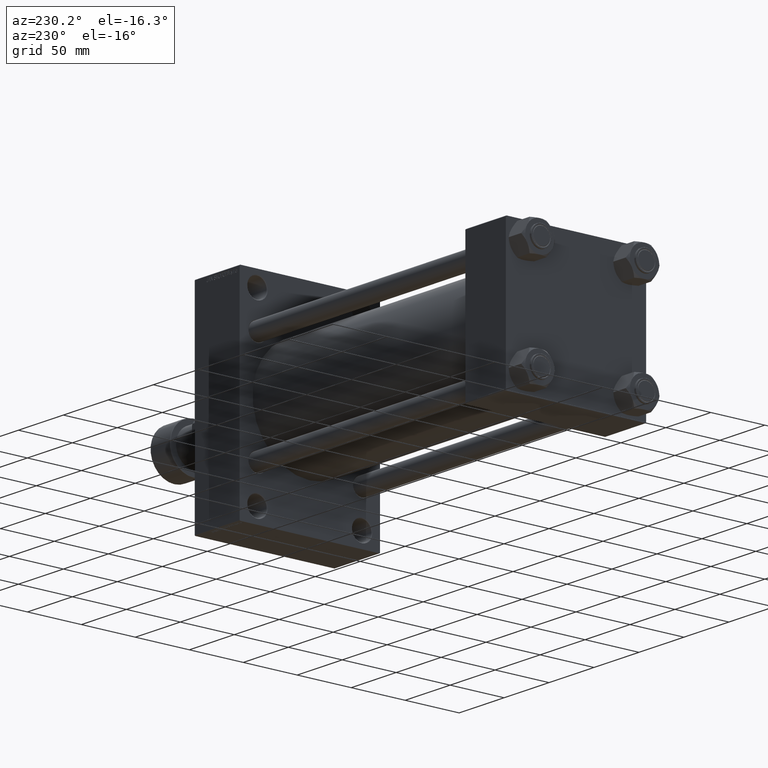
[diagram: clean part render]
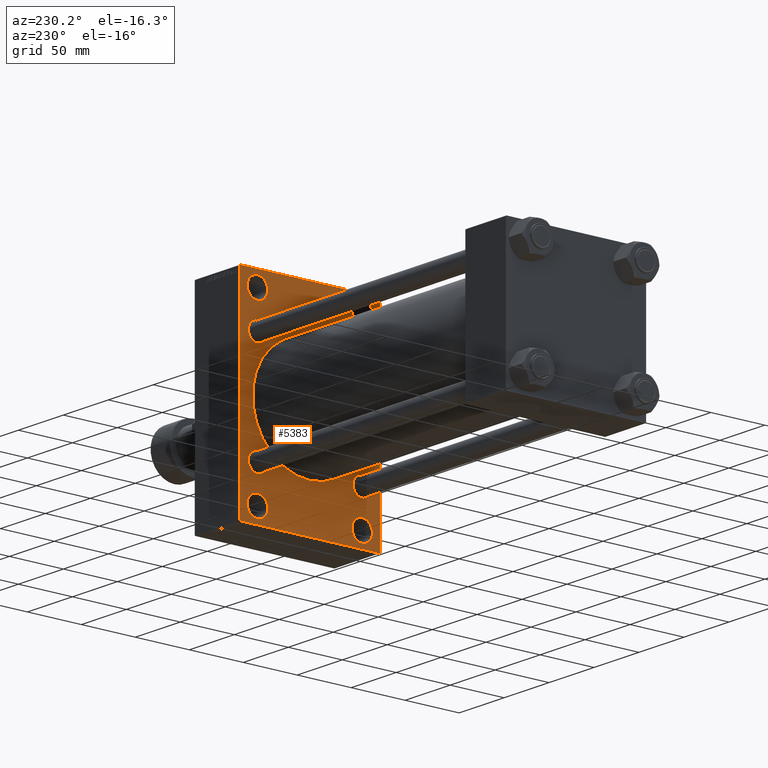
[diagram: same view with one face highlighted and labeled with its STEP entity id]
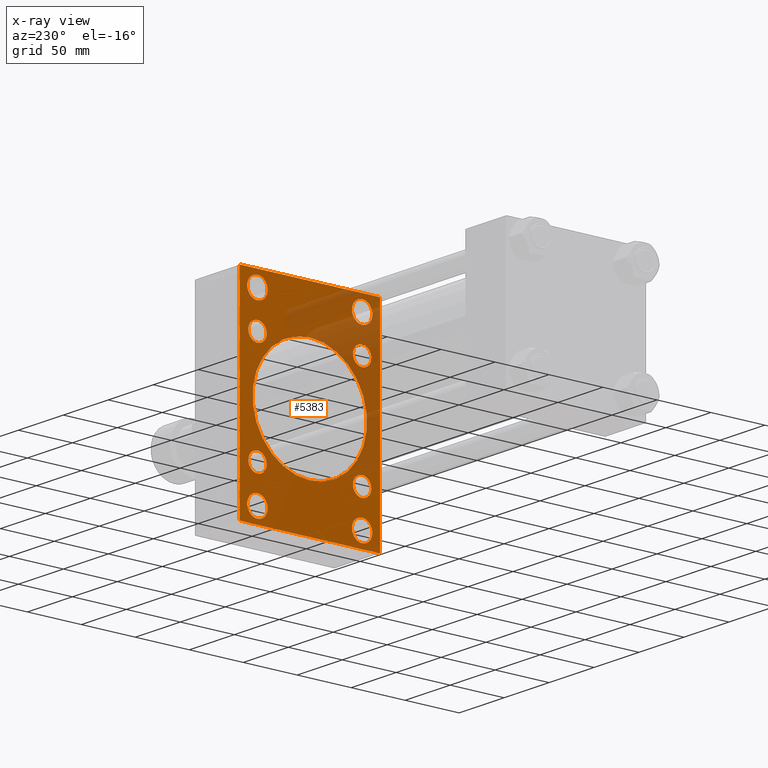
[diagram: x-ray of the same camera — body ghosted, the highlighted face saturated]
A machine part, auxiliary view. The second image highlights one B-rep face of the part: STEP entity #5383.
The next image is the same camera in x-ray: the body ghosted, the highlighted face saturated — about 28% of this face is hidden behind the body in this view.
In plain terms, the highlighted planar face has unit normal (-1, 0, 0).
Its self-contained STEP definition (entity closure, byte-faithful):
#350 = DIRECTION ( 'NONE',  ( 1.000000000000000000, -0.000000000000000000, 0.000000000000000000 ) ) ;
#450 = CARTESIAN_POINT ( 'NONE',  ( 296.0000000000000000, -65.00000000000001421, 94.49999999999997158 ) ) ;
#510 = CARTESIAN_POINT ( 'NONE',  ( 296.0000000000000000, -64.50000000000002842, 94.99999999999997158 ) ) ;
#832 = EDGE_CURVE ( 'NONE', #7210, #36963, #19401, .T. ) ;
#1449 = DIRECTION ( 'NONE',  ( -0.000000000000000000, -0.7071067811865965336, -0.7071067811864985009 ) ) ;
#1478 = AXIS2_PLACEMENT_3D ( 'NONE', #12598, #22793, #41518 ) ;
#1691 = EDGE_CURVE ( 'NONE', #13003, #13485, #14030, .T. ) ;
#1720 = AXIS2_PLACEMENT_3D ( 'NONE', #4002, #350, #40231 ) ;
#2056 = DIRECTION ( 'NONE',  ( 0.000000000000000000, 0.000000000000000000, 1.000000000000000000 ) ) ;
#2090 = CARTESIAN_POINT ( 'NONE',  ( 296.0000000000000000, 48.50000000000000711, 81.00000000000000000 ) ) ;
#2571 = DIRECTION ( 'NONE',  ( 1.000000000000000000, -0.000000000000000000, 0.000000000000000000 ) ) ;
#2811 = DIRECTION ( 'NONE',  ( 0.000000000000000000, 0.000000000000000000, 1.000000000000000000 ) ) ;
#3235 = EDGE_CURVE ( 'NONE', #36963, #7210, #7838, .T. ) ;
#3280 = FACE_BOUND ( 'NONE', #45879, .T. ) ;
#3525 = FACE_BOUND ( 'NONE', #12236, .T. ) ;
#3737 = DIRECTION ( 'NONE',  ( 1.000000000000000000, -0.000000000000000000, 0.000000000000000000 ) ) ;
#4002 = CARTESIAN_POINT ( 'NONE',  ( 296.0000000000000000, -48.49999999999999289, -81.00000000000001421 ) ) ;
#4237 = DIRECTION ( 'NONE',  ( 1.000000000000000000, -0.000000000000000000, 0.000000000000000000 ) ) ;
#4418 = CARTESIAN_POINT ( 'NONE',  ( 296.0000000000000000, 79.74999999999997158, 79.74999999999997158 ) ) ;
#4666 = LINE ( 'NONE', #27991, #11851 ) ;
#5116 = VERTEX_POINT ( 'NONE', #18636 ) ;
#5179 = VERTEX_POINT ( 'NONE', #40768 ) ;
#5349 = EDGE_LOOP ( 'NONE', ( #35065, #15864 ) ) ;
#5364 = EDGE_CURVE ( 'NONE', #27796, #21716, #20792, .T. ) ;
#5375 = DIRECTION ( 'NONE',  ( 0.000000000000000000, 0.000000000000000000, 1.000000000000000000 ) ) ;
#5383 = ADVANCED_FACE ( 'NONE', ( #25880, #3280, #47538, #29759, #29038, #36824, #29995, #3525, #7183, #18821 ), #40471, .T. ) ;
#5405 = DIRECTION ( 'NONE',  ( 0.000000000000000000, 0.000000000000000000, 1.000000000000000000 ) ) ;
#5433 = DIRECTION ( 'NONE',  ( 0.000000000000000000, -0.7071067811865474617, 0.7071067811865474617 ) ) ;
#5663 = CIRCLE ( 'NONE', #39020, 9.500000000000008882 ) ;
#5757 = CARTESIAN_POINT ( 'NONE',  ( 296.0000000000000000, 48.45000000000000995, -48.45000000000001705 ) ) ;
#5871 = ORIENTED_EDGE ( 'NONE', *, *, #29656, .F. ) ;
#6134 = EDGE_CURVE ( 'NONE', #19979, #47564, #37426, .T. ) ;
#6391 = DIRECTION ( 'NONE',  ( 0.000000000000000000, 0.000000000000000000, -1.000000000000000000 ) ) ;
#6600 = ORIENTED_EDGE ( 'NONE', *, *, #30209, .T. ) ;
#6789 = EDGE_CURVE ( 'NONE', #47564, #19979, #5663, .T. ) ;
#7047 = CARTESIAN_POINT ( 'NONE',  ( 296.0000000000000000, -65.00000000000001421, 94.99999999999997158 ) ) ;
#7183 = FACE_BOUND ( 'NONE', #32137, .T. ) ;
#7210 = VERTEX_POINT ( 'NONE', #22604 ) ;
#7633 = EDGE_LOOP ( 'NONE', ( #25366, #36789 ) ) ;
#7838 = CIRCLE ( 'NONE', #42009, 8.500000000000007105 ) ;
#8042 = VECTOR ( 'NONE', #42571, 1000.000000000000114 ) ;
#8050 = EDGE_CURVE ( 'NONE', #36898, #34571, #12713, .T. ) ;
#8174 = VECTOR ( 'NONE', #21881, 1000.000000000000000 ) ;
#8348 = VERTEX_POINT ( 'NONE', #13134 ) ;
#8506 = EDGE_CURVE ( 'NONE', #26452, #22313, #44518, .T. ) ;
#8718 = AXIS2_PLACEMENT_3D ( 'NONE', #2090, #2571, #24456 ) ;
#9095 = CARTESIAN_POINT ( 'NONE',  ( 296.0000000000000000, -79.75000000000001421, -79.75000000000001421 ) ) ;
#9502 = EDGE_CURVE ( 'NONE', #40735, #42592, #36912, .T. ) ;
#9593 = AXIS2_PLACEMENT_3D ( 'NONE', #34053, #23119, #11723 ) ;
#10241 = AXIS2_PLACEMENT_3D ( 'NONE', #11546, #10827, #22001 ) ;
#10288 = CARTESIAN_POINT ( 'NONE',  ( 296.0000000000000000, -2.602085213965210642E-15, 0.000000000000000000 ) ) ;
#10322 = ORIENTED_EDGE ( 'NONE', *, *, #35981, .T. ) ;
#10663 = AXIS2_PLACEMENT_3D ( 'NONE', #5757, #35873, #2811 ) ;
#10777 = CARTESIAN_POINT ( 'NONE',  ( 296.0000000000000000, -48.50000000000000000, 71.50000000000000000 ) ) ;
#10827 = DIRECTION ( 'NONE',  ( -1.000000000000000000, 0.000000000000000000, -0.000000000000000000 ) ) ;
#11059 = CARTESIAN_POINT ( 'NONE',  ( 296.0000000000000000, 48.50000000000000711, -81.00000000000001421 ) ) ;
#11429 = AXIS2_PLACEMENT_3D ( 'NONE', #13902, #24105, #12946 ) ;
#11437 = VERTEX_POINT ( 'NONE', #22705 ) ;
#11440 = LINE ( 'NONE', #44012, #8174 ) ;
#11546 = CARTESIAN_POINT ( 'NONE',  ( 296.0000000000000000, 0.000000000000000000, 0.000000000000000000 ) ) ;
#11723 = DIRECTION ( 'NONE',  ( 0.000000000000000000, 0.000000000000000000, -1.000000000000000000 ) ) ;
#11851 = VECTOR ( 'NONE', #38699, 1000.000000000000000 ) ;
#11938 = CARTESIAN_POINT ( 'NONE',  ( 296.0000000000000000, -64.50000000000001421, -95.00000000000002842 ) ) ;
#12051 = ORIENTED_EDGE ( 'NONE', *, *, #8506, .T. ) ;
#12229 = CIRCLE ( 'NONE', #10663, 8.500000000000007105 ) ;
#12236 = EDGE_LOOP ( 'NONE', ( #12051, #30806 ) ) ;
#12280 = DIRECTION ( 'NONE',  ( 0.000000000000000000, 0.000000000000000000, 1.000000000000000000 ) ) ;
#12284 = ORIENTED_EDGE ( 'NONE', *, *, #26993, .T. ) ;
#12321 = VECTOR ( 'NONE', #1449, 1000.000000000000114 ) ;
#12422 = CARTESIAN_POINT ( 'NONE',  ( 296.0000000000000000, -48.44999999999999574, -56.95000000000003837 ) ) ;
#12598 = CARTESIAN_POINT ( 'NONE',  ( 296.0000000000000000, -48.50000000000000000, 81.00000000000000000 ) ) ;
#12713 = CIRCLE ( 'NONE', #22739, 9.500000000000008882 ) ;
#12748 = EDGE_CURVE ( 'NONE', #40735, #27796, #37720, .T. ) ;
#12766 = EDGE_LOOP ( 'NONE', ( #12284, #14910 ) ) ;
#12946 = DIRECTION ( 'NONE',  ( 0.000000000000000000, 0.000000000000000000, 1.000000000000000000 ) ) ;
#13003 = VERTEX_POINT ( 'NONE', #17597 ) ;
#13117 = EDGE_CURVE ( 'NONE', #8348, #23383, #17379, .T. ) ;
#13134 = CARTESIAN_POINT ( 'NONE',  ( 296.0000000000000000, 48.45000000000000995, -56.95000000000002416 ) ) ;
#13485 = VERTEX_POINT ( 'NONE', #36171 ) ;
#13764 = DIRECTION ( 'NONE',  ( 0.000000000000000000, 7.304098846218135653E-17, -1.000000000000000000 ) ) ;
#13901 = ORIENTED_EDGE ( 'NONE', *, *, #17612, .T. ) ;
#13902 = CARTESIAN_POINT ( 'NONE',  ( 296.0000000000000000, 48.45000000000000995, 48.45000000000001705 ) ) ;
#14030 = CIRCLE ( 'NONE', #44308, 8.500000000000007105 ) ;
#14547 = CIRCLE ( 'NONE', #11429, 8.500000000000007105 ) ;
#14630 = EDGE_LOOP ( 'NONE', ( #42820, #34748 ) ) ;
#14910 = ORIENTED_EDGE ( 'NONE', *, *, #1691, .T. ) ;
#15445 = CARTESIAN_POINT ( 'NONE',  ( 296.0000000000000000, -48.44999999999999574, -48.45000000000003126 ) ) ;
#15864 = ORIENTED_EDGE ( 'NONE', *, *, #832, .T. ) ;
#16343 = DIRECTION ( 'NONE',  ( 0.000000000000000000, 0.000000000000000000, 1.000000000000000000 ) ) ;
#16496 = DIRECTION ( 'NONE',  ( 1.000000000000000000, -0.000000000000000000, 0.000000000000000000 ) ) ;
#16702 = ORIENTED_EDGE ( 'NONE', *, *, #21317, .T. ) ;
#17124 = EDGE_CURVE ( 'NONE', #36906, #30245, #11440, .T. ) ;
#17379 = CIRCLE ( 'NONE', #42179, 8.500000000000007105 ) ;
#17597 = CARTESIAN_POINT ( 'NONE',  ( 296.0000000000000000, 48.45000000000000995, 39.95000000000000284 ) ) ;
#17612 = EDGE_CURVE ( 'NONE', #29672, #42592, #4666, .T. ) ;
#18529 = EDGE_CURVE ( 'NONE', #5179, #5116, #37642, .T. ) ;
#18543 = VERTEX_POINT ( 'NONE', #24616 ) ;
#18636 = CARTESIAN_POINT ( 'NONE',  ( 296.0000000000000000, 3.888542821515762466E-15, -53.00000000000000711 ) ) ;
#18821 = FACE_OUTER_BOUND ( 'NONE', #38218, .T. ) ;
#19147 = ORIENTED_EDGE ( 'NONE', *, *, #6134, .T. ) ;
#19245 = AXIS2_PLACEMENT_3D ( 'NONE', #30468, #4237, #41667 ) ;
#19401 = CIRCLE ( 'NONE', #24833, 8.500000000000007105 ) ;
#19616 = VERTEX_POINT ( 'NONE', #27010 ) ;
#19953 = CARTESIAN_POINT ( 'NONE',  ( 296.0000000000000000, -48.44999999999999574, 48.45000000000003126 ) ) ;
#19979 = VERTEX_POINT ( 'NONE', #20622 ) ;
#19991 = ORIENTED_EDGE ( 'NONE', *, *, #37752, .T. ) ;
#20156 = ORIENTED_EDGE ( 'NONE', *, *, #18529, .T. ) ;
#20225 = CARTESIAN_POINT ( 'NONE',  ( 296.0000000000000000, -48.50000000000000000, 81.00000000000000000 ) ) ;
#20496 = LINE ( 'NONE', #9095, #47474 ) ;
#20622 = CARTESIAN_POINT ( 'NONE',  ( 296.0000000000000000, -48.49999999999999289, -90.50000000000002842 ) ) ;
#20758 = VERTEX_POINT ( 'NONE', #36167 ) ;
#20792 = LINE ( 'NONE', #28087, #31186 ) ;
#21125 = CIRCLE ( 'NONE', #8718, 9.500000000000008882 ) ;
#21317 = EDGE_CURVE ( 'NONE', #23743, #20758, #27685, .T. ) ;
#21679 = DIRECTION ( 'NONE',  ( 1.000000000000000000, 0.000000000000000000, 0.000000000000000000 ) ) ;
#21716 = VERTEX_POINT ( 'NONE', #25423 ) ;
#21809 = AXIS2_PLACEMENT_3D ( 'NONE', #15445, #45569, #12280 ) ;
#21881 = DIRECTION ( 'NONE',  ( 0.000000000000000000, -1.000000000000000000, -1.067522139062650425E-16 ) ) ;
#22001 = DIRECTION ( 'NONE',  ( -0.000000000000000000, 0.000000000000000000, 1.000000000000000000 ) ) ;
#22313 = VERTEX_POINT ( 'NONE', #12422 ) ;
#22604 = CARTESIAN_POINT ( 'NONE',  ( 296.0000000000000000, -48.44999999999999574, 39.95000000000001705 ) ) ;
#22705 = CARTESIAN_POINT ( 'NONE',  ( 296.0000000000000000, -65.00000000000001421, -94.50000000000002842 ) ) ;
#22739 = AXIS2_PLACEMENT_3D ( 'NONE', #20225, #31413, #5405 ) ;
#22793 = DIRECTION ( 'NONE',  ( 1.000000000000000000, -0.000000000000000000, 0.000000000000000000 ) ) ;
#23119 = DIRECTION ( 'NONE',  ( 1.000000000000000000, 0.000000000000000000, 0.000000000000000000 ) ) ;
#23326 = CARTESIAN_POINT ( 'NONE',  ( 296.0000000000000000, 48.50000000000000711, 81.00000000000000000 ) ) ;
#23383 = VERTEX_POINT ( 'NONE', #35437 ) ;
#23619 = DIRECTION ( 'NONE',  ( 1.000000000000000000, -0.000000000000000000, 0.000000000000000000 ) ) ;
#23743 = VERTEX_POINT ( 'NONE', #43155 ) ;
#23839 = DIRECTION ( 'NONE',  ( 1.000000000000000000, -0.000000000000000000, 0.000000000000000000 ) ) ;
#23857 = CARTESIAN_POINT ( 'NONE',  ( 296.0000000000000000, 48.45000000000000995, -48.45000000000001705 ) ) ;
#24105 = DIRECTION ( 'NONE',  ( 1.000000000000000000, -0.000000000000000000, 0.000000000000000000 ) ) ;
#24145 = LINE ( 'NONE', #7047, #37152 ) ;
#24294 = DIRECTION ( 'NONE',  ( 0.000000000000000000, 0.000000000000000000, 1.000000000000000000 ) ) ;
#24303 = EDGE_CURVE ( 'NONE', #18543, #19616, #27790, .T. ) ;
#24313 = CIRCLE ( 'NONE', #9593, 53.00000000000000711 ) ;
#24456 = DIRECTION ( 'NONE',  ( 0.000000000000000000, 0.000000000000000000, 1.000000000000000000 ) ) ;
#24616 = CARTESIAN_POINT ( 'NONE',  ( 296.0000000000000000, 48.50000000000000711, -90.50000000000002842 ) ) ;
#24833 = AXIS2_PLACEMENT_3D ( 'NONE', #46071, #43140, #2056 ) ;
#25292 = ORIENTED_EDGE ( 'NONE', *, *, #12748, .T. ) ;
#25366 = ORIENTED_EDGE ( 'NONE', *, *, #30546, .T. ) ;
#25423 = CARTESIAN_POINT ( 'NONE',  ( 296.0000000000000000, 64.99999999999998579, -94.49999999999997158 ) ) ;
#25724 = DIRECTION ( 'NONE',  ( 0.000000000000000000, -1.000000000000000000, 0.000000000000000000 ) ) ;
#25880 = FACE_BOUND ( 'NONE', #7633, .T. ) ;
#26375 = EDGE_CURVE ( 'NONE', #23383, #8348, #12229, .T. ) ;
#26452 = VERTEX_POINT ( 'NONE', #39521 ) ;
#26561 = EDGE_LOOP ( 'NONE', ( #45574, #47028 ) ) ;
#26993 = EDGE_CURVE ( 'NONE', #13485, #13003, #14547, .T. ) ;
#27010 = CARTESIAN_POINT ( 'NONE',  ( 296.0000000000000000, 48.50000000000000711, -71.50000000000001421 ) ) ;
#27685 = CIRCLE ( 'NONE', #39308, 9.500000000000008882 ) ;
#27712 = DIRECTION ( 'NONE',  ( 0.000000000000000000, 0.000000000000000000, 1.000000000000000000 ) ) ;
#27790 = CIRCLE ( 'NONE', #19245, 9.500000000000008882 ) ;
#27796 = VERTEX_POINT ( 'NONE', #27947 ) ;
#27947 = CARTESIAN_POINT ( 'NONE',  ( 296.0000000000000000, 64.99999999999997158, 94.49999999999997158 ) ) ;
#27991 = CARTESIAN_POINT ( 'NONE',  ( 296.0000000000000000, -79.75000000000089528, 79.74999999999867839 ) ) ;
#28087 = CARTESIAN_POINT ( 'NONE',  ( 296.0000000000000000, 64.99999999999997158, 94.99999999999997158 ) ) ;
#28284 = CARTESIAN_POINT ( 'NONE',  ( 296.0000000000000000, -48.49999999999999289, -71.50000000000001421 ) ) ;
#28898 = CARTESIAN_POINT ( 'NONE',  ( 296.0000000000000000, 64.99999999999997158, 94.99999999999997158 ) ) ;
#29038 = FACE_BOUND ( 'NONE', #5349, .T. ) ;
#29656 = EDGE_CURVE ( 'NONE', #29672, #11437, #24145, .T. ) ;
#29672 = VERTEX_POINT ( 'NONE', #450 ) ;
#29759 = FACE_BOUND ( 'NONE', #45951, .T. ) ;
#29995 = FACE_BOUND ( 'NONE', #14630, .T. ) ;
#30193 = CIRCLE ( 'NONE', #1478, 9.500000000000008882 ) ;
#30209 = EDGE_CURVE ( 'NONE', #21716, #36906, #46190, .T. ) ;
#30245 = VERTEX_POINT ( 'NONE', #11938 ) ;
#30468 = CARTESIAN_POINT ( 'NONE',  ( 296.0000000000000000, 48.50000000000000711, -81.00000000000001421 ) ) ;
#30546 = EDGE_CURVE ( 'NONE', #34571, #36898, #30193, .T. ) ;
#30806 = ORIENTED_EDGE ( 'NONE', *, *, #34378, .T. ) ;
#30914 = ORIENTED_EDGE ( 'NONE', *, *, #17124, .T. ) ;
#31186 = VECTOR ( 'NONE', #13764, 1000.000000000000000 ) ;
#31349 = CARTESIAN_POINT ( 'NONE',  ( 296.0000000000000000, -48.44999999999999574, -48.45000000000003126 ) ) ;
#31413 = DIRECTION ( 'NONE',  ( 1.000000000000000000, -0.000000000000000000, 0.000000000000000000 ) ) ;
#32137 = EDGE_LOOP ( 'NONE', ( #20156, #41634 ) ) ;
#33254 = ORIENTED_EDGE ( 'NONE', *, *, #5364, .T. ) ;
#33974 = DIRECTION ( 'NONE',  ( 0.000000000000000000, 0.000000000000000000, 1.000000000000000000 ) ) ;
#34053 = CARTESIAN_POINT ( 'NONE',  ( 296.0000000000000000, -2.602085213965210642E-15, 0.000000000000000000 ) ) ;
#34089 = ORIENTED_EDGE ( 'NONE', *, *, #9502, .F. ) ;
#34378 = EDGE_CURVE ( 'NONE', #22313, #26452, #39649, .T. ) ;
#34571 = VERTEX_POINT ( 'NONE', #40671 ) ;
#34748 = ORIENTED_EDGE ( 'NONE', *, *, #13117, .T. ) ;
#35065 = ORIENTED_EDGE ( 'NONE', *, *, #3235, .T. ) ;
#35437 = CARTESIAN_POINT ( 'NONE',  ( 296.0000000000000000, 48.45000000000000995, -39.95000000000000284 ) ) ;
#35873 = DIRECTION ( 'NONE',  ( 1.000000000000000000, -0.000000000000000000, 0.000000000000000000 ) ) ;
#35981 = EDGE_CURVE ( 'NONE', #30245, #11437, #20496, .T. ) ;
#36167 = CARTESIAN_POINT ( 'NONE',  ( 296.0000000000000000, 48.50000000000000711, 90.50000000000001421 ) ) ;
#36171 = CARTESIAN_POINT ( 'NONE',  ( 296.0000000000000000, 48.45000000000000995, 56.95000000000002416 ) ) ;
#36767 = CARTESIAN_POINT ( 'NONE',  ( 296.0000000000000000, 64.49999999999987210, -95.00000000000001421 ) ) ;
#36789 = ORIENTED_EDGE ( 'NONE', *, *, #8050, .T. ) ;
#36824 = FACE_BOUND ( 'NONE', #12766, .T. ) ;
#36898 = VERTEX_POINT ( 'NONE', #10777 ) ;
#36906 = VERTEX_POINT ( 'NONE', #36767 ) ;
#36912 = LINE ( 'NONE', #28898, #46111 ) ;
#36963 = VERTEX_POINT ( 'NONE', #47725 ) ;
#37152 = VECTOR ( 'NONE', #47410, 1000.000000000000000 ) ;
#37426 = CIRCLE ( 'NONE', #1720, 9.500000000000008882 ) ;
#37642 = CIRCLE ( 'NONE', #43108, 53.00000000000000711 ) ;
#37720 = LINE ( 'NONE', #4418, #8042 ) ;
#37752 = EDGE_CURVE ( 'NONE', #20758, #23743, #21125, .T. ) ;
#38218 = EDGE_LOOP ( 'NONE', ( #30914, #10322, #5871, #13901, #34089, #25292, #33254, #6600 ) ) ;
#38699 = DIRECTION ( 'NONE',  ( -0.000000000000000000, 0.7071067811865378028, 0.7071067811865573427 ) ) ;
#38883 = DIRECTION ( 'NONE',  ( 0.000000000000000000, 0.000000000000000000, 1.000000000000000000 ) ) ;
#39020 = AXIS2_PLACEMENT_3D ( 'NONE', #46144, #16496, #33974 ) ;
#39308 = AXIS2_PLACEMENT_3D ( 'NONE', #23326, #42773, #38883 ) ;
#39446 = EDGE_CURVE ( 'NONE', #19616, #18543, #45897, .T. ) ;
#39521 = CARTESIAN_POINT ( 'NONE',  ( 296.0000000000000000, -48.44999999999999574, -39.95000000000001705 ) ) ;
#39649 = CIRCLE ( 'NONE', #21809, 8.500000000000007105 ) ;
#40231 = DIRECTION ( 'NONE',  ( 0.000000000000000000, 0.000000000000000000, 1.000000000000000000 ) ) ;
#40471 = PLANE ( 'NONE',  #10241 ) ;
#40671 = CARTESIAN_POINT ( 'NONE',  ( 296.0000000000000000, -48.50000000000000000, 90.50000000000001421 ) ) ;
#40735 = VERTEX_POINT ( 'NONE', #42484 ) ;
#40768 = CARTESIAN_POINT ( 'NONE',  ( 296.0000000000000000, -2.602085213965210642E-15, 53.00000000000000711 ) ) ;
#41390 = AXIS2_PLACEMENT_3D ( 'NONE', #31349, #45945, #24294 ) ;
#41518 = DIRECTION ( 'NONE',  ( 0.000000000000000000, 0.000000000000000000, 1.000000000000000000 ) ) ;
#41634 = ORIENTED_EDGE ( 'NONE', *, *, #43237, .T. ) ;
#41667 = DIRECTION ( 'NONE',  ( 0.000000000000000000, 0.000000000000000000, 1.000000000000000000 ) ) ;
#42009 = AXIS2_PLACEMENT_3D ( 'NONE', #19953, #23839, #5375 ) ;
#42179 = AXIS2_PLACEMENT_3D ( 'NONE', #23857, #23619, #16343 ) ;
#42484 = CARTESIAN_POINT ( 'NONE',  ( 296.0000000000000000, 64.49999999999997158, 94.99999999999997158 ) ) ;
#42571 = DIRECTION ( 'NONE',  ( 0.000000000000000000, 0.7071067811865474617, -0.7071067811865474617 ) ) ;
#42592 = VERTEX_POINT ( 'NONE', #510 ) ;
#42773 = DIRECTION ( 'NONE',  ( 1.000000000000000000, -0.000000000000000000, 0.000000000000000000 ) ) ;
#42820 = ORIENTED_EDGE ( 'NONE', *, *, #26375, .T. ) ;
#43108 = AXIS2_PLACEMENT_3D ( 'NONE', #10288, #21679, #6391 ) ;
#43140 = DIRECTION ( 'NONE',  ( 1.000000000000000000, -0.000000000000000000, 0.000000000000000000 ) ) ;
#43155 = CARTESIAN_POINT ( 'NONE',  ( 296.0000000000000000, 48.50000000000000711, 71.50000000000000000 ) ) ;
#43237 = EDGE_CURVE ( 'NONE', #5116, #5179, #24313, .T. ) ;
#43258 = CARTESIAN_POINT ( 'NONE',  ( 296.0000000000000000, 48.45000000000000995, 48.45000000000001705 ) ) ;
#44012 = CARTESIAN_POINT ( 'NONE',  ( 296.0000000000000000, 64.99999999999998579, -95.00000000000001421 ) ) ;
#44308 = AXIS2_PLACEMENT_3D ( 'NONE', #43258, #46200, #27712 ) ;
#44518 = CIRCLE ( 'NONE', #41390, 8.500000000000007105 ) ;
#45095 = AXIS2_PLACEMENT_3D ( 'NONE', #11059, #3737, #47761 ) ;
#45228 = CARTESIAN_POINT ( 'NONE',  ( 296.0000000000000000, 79.74999999999546674, -79.75000000000653699 ) ) ;
#45569 = DIRECTION ( 'NONE',  ( 1.000000000000000000, -0.000000000000000000, 0.000000000000000000 ) ) ;
#45574 = ORIENTED_EDGE ( 'NONE', *, *, #39446, .T. ) ;
#45879 = EDGE_LOOP ( 'NONE', ( #47446, #19147 ) ) ;
#45897 = CIRCLE ( 'NONE', #45095, 9.500000000000008882 ) ;
#45945 = DIRECTION ( 'NONE',  ( 1.000000000000000000, -0.000000000000000000, 0.000000000000000000 ) ) ;
#45951 = EDGE_LOOP ( 'NONE', ( #19991, #16702 ) ) ;
#46071 = CARTESIAN_POINT ( 'NONE',  ( 296.0000000000000000, -48.44999999999999574, 48.45000000000003126 ) ) ;
#46111 = VECTOR ( 'NONE', #25724, 1000.000000000000000 ) ;
#46144 = CARTESIAN_POINT ( 'NONE',  ( 296.0000000000000000, -48.49999999999999289, -81.00000000000001421 ) ) ;
#46190 = LINE ( 'NONE', #45228, #12321 ) ;
#46200 = DIRECTION ( 'NONE',  ( 1.000000000000000000, -0.000000000000000000, 0.000000000000000000 ) ) ;
#47028 = ORIENTED_EDGE ( 'NONE', *, *, #24303, .T. ) ;
#47410 = DIRECTION ( 'NONE',  ( 0.000000000000000000, 0.000000000000000000, -1.000000000000000000 ) ) ;
#47446 = ORIENTED_EDGE ( 'NONE', *, *, #6789, .T. ) ;
#47474 = VECTOR ( 'NONE', #5433, 1000.000000000000114 ) ;
#47538 = FACE_BOUND ( 'NONE', #26561, .T. ) ;
#47564 = VERTEX_POINT ( 'NONE', #28284 ) ;
#47725 = CARTESIAN_POINT ( 'NONE',  ( 296.0000000000000000, -48.44999999999999574, 56.95000000000003837 ) ) ;
#47761 = DIRECTION ( 'NONE',  ( 0.000000000000000000, 0.000000000000000000, 1.000000000000000000 ) ) ;